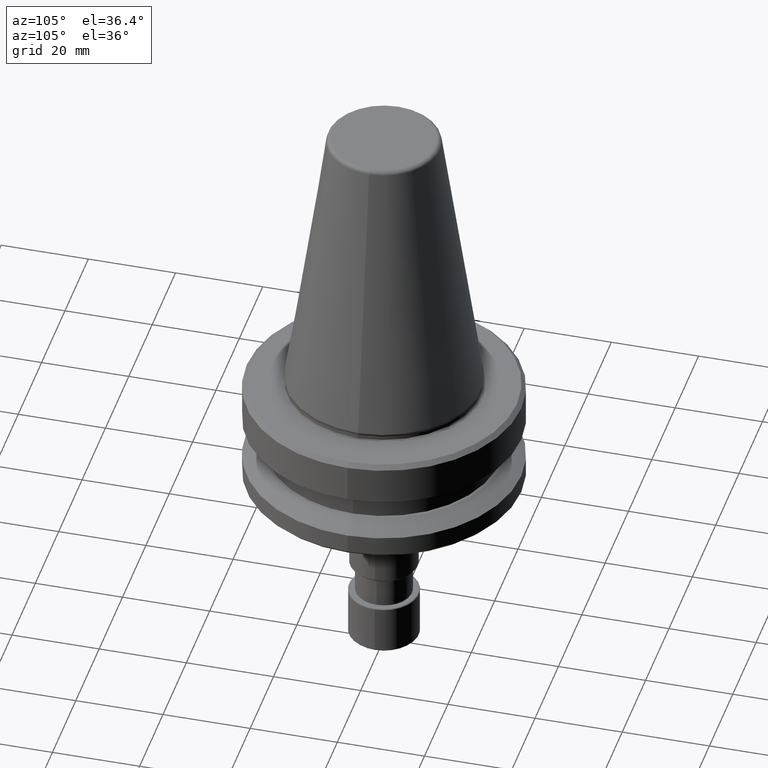
[diagram: clean part render]
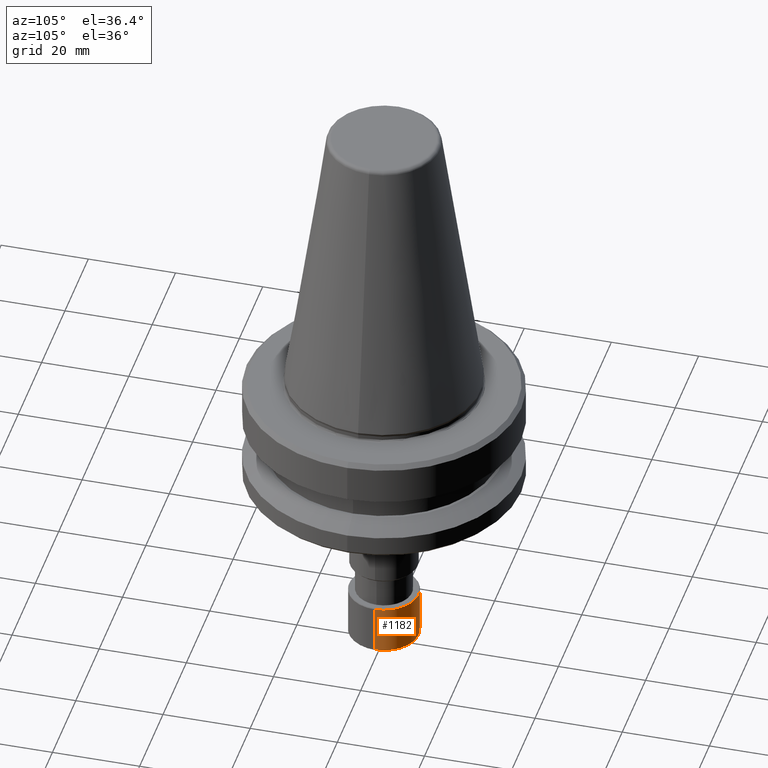
[diagram: same view with one face highlighted and labeled with its STEP entity id]
A machine part, auxiliary view. The second image highlights one B-rep face of the part: STEP entity #1182.
In plain terms, the highlighted cylindrical surface (edge-blend (fillet) strip) has radius 8 mm, axis along (-0, -0, 1).
Its self-contained STEP definition (entity closure, byte-faithful):
#2 = VECTOR ( 'NONE', #1274, 1000.000000000000000 ) ;
#36 = ORIENTED_EDGE ( 'NONE', *, *, #948, .T. ) ;
#41 = CARTESIAN_POINT ( 'NONE',  ( 0.0000000000000000000, 0.0000000000000000000, -58.68832170721852000 ) ) ;
#78 = LINE ( 'NONE', #772, #2 ) ;
#79 = CIRCLE ( 'NONE', #1291, 8.000000000000007100 ) ;
#109 = DIRECTION ( 'NONE',  ( -0.0000000000000000000, -0.0000000000000000000, 1.000000000000000000 ) ) ;
#112 = EDGE_CURVE ( 'NONE', #748, #717, #79, .T. ) ;
#144 = DIRECTION ( 'NONE',  ( 1.000000000000000000, 0.0000000000000000000, 0.0000000000000000000 ) ) ;
#205 = CIRCLE ( 'NONE', #1135, 8.000000000000007100 ) ;
#206 = DIRECTION ( 'NONE',  ( 1.000000000000000000, 0.0000000000000000000, 0.0000000000000000000 ) ) ;
#257 = CARTESIAN_POINT ( 'NONE',  ( -8.000000000000007100, 9.797174393178835500E-016, -69.73351687561849100 ) ) ;
#275 = VECTOR ( 'NONE', #1239, 1000.000000000000000 ) ;
#315 = CARTESIAN_POINT ( 'NONE',  ( 0.0000000000000000000, 0.0000000000000000000, 75.66287855238890400 ) ) ;
#405 = CYLINDRICAL_SURFACE ( 'NONE', #1204, 8.000000000000007100 ) ;
#542 = ORIENTED_EDGE ( 'NONE', *, *, #112, .F. ) ;
#545 = EDGE_CURVE ( 'NONE', #1089, #748, #1304, .T. ) ;
#627 = CARTESIAN_POINT ( 'NONE',  ( 8.000000000000007100, 0.0000000000000000000, 75.66287855238890400 ) ) ;
#685 = CARTESIAN_POINT ( 'NONE',  ( -8.000000000000007100, 9.797174393178835500E-016, -58.68832170721852000 ) ) ;
#717 = VERTEX_POINT ( 'NONE', #685 ) ;
#722 = CARTESIAN_POINT ( 'NONE',  ( 0.0000000000000000000, 0.0000000000000000000, -69.73351687561849100 ) ) ;
#748 = VERTEX_POINT ( 'NONE', #794 ) ;
#750 = EDGE_LOOP ( 'NONE', ( #805, #36, #542, #994 ) ) ;
#754 = DIRECTION ( 'NONE',  ( -0.0000000000000000000, -0.0000000000000000000, 1.000000000000000000 ) ) ;
#772 = CARTESIAN_POINT ( 'NONE',  ( -8.000000000000007100, 9.797174393178835500E-016, 75.66287855238890400 ) ) ;
#794 = CARTESIAN_POINT ( 'NONE',  ( 8.000000000000007100, 0.0000000000000000000, -58.68832170721852000 ) ) ;
#805 = ORIENTED_EDGE ( 'NONE', *, *, #1276, .T. ) ;
#823 = DIRECTION ( 'NONE',  ( 1.000000000000000000, 0.0000000000000000000, 0.0000000000000000000 ) ) ;
#894 = VERTEX_POINT ( 'NONE', #257 ) ;
#948 = EDGE_CURVE ( 'NONE', #894, #717, #78, .T. ) ;
#994 = ORIENTED_EDGE ( 'NONE', *, *, #545, .F. ) ;
#1089 = VERTEX_POINT ( 'NONE', #1180 ) ;
#1123 = DIRECTION ( 'NONE',  ( -0.0000000000000000000, -0.0000000000000000000, 1.000000000000000000 ) ) ;
#1135 = AXIS2_PLACEMENT_3D ( 'NONE', #722, #109, #823 ) ;
#1180 = CARTESIAN_POINT ( 'NONE',  ( 8.000000000000007100, 0.0000000000000000000, -69.73351687561849100 ) ) ;
#1182 = ADVANCED_FACE ( 'NONE', ( #1303 ), #405, .T. ) ;
#1204 = AXIS2_PLACEMENT_3D ( 'NONE', #315, #1123, #206 ) ;
#1239 = DIRECTION ( 'NONE',  ( -0.0000000000000000000, -0.0000000000000000000, 1.000000000000000000 ) ) ;
#1274 = DIRECTION ( 'NONE',  ( -0.0000000000000000000, -0.0000000000000000000, 1.000000000000000000 ) ) ;
#1276 = EDGE_CURVE ( 'NONE', #1089, #894, #205, .T. ) ;
#1291 = AXIS2_PLACEMENT_3D ( 'NONE', #41, #754, #144 ) ;
#1303 = FACE_OUTER_BOUND ( 'NONE', #750, .T. ) ;
#1304 = LINE ( 'NONE', #627, #275 ) ;